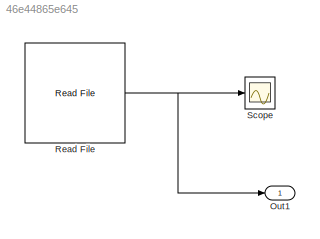
MODEL slx_46e44865e645
KIND model
CONFIG AbsTol = auto
CONFIG FixedStep = 1
CONFIG MaxStep = auto
CONFIG MinStep = auto
CONFIG RelTol = 1e-3
CONFIG SampleTimeConstraint = Unconstrained
CONFIG Solver = ode3
CONFIG SolverMode = Auto
CONFIG SolverName = ode3
CONFIG StartTime = 0.0
CONFIG StopTime = 24*3600
BLOCK [Outport] Out1
  IconDisplay = Port number
BLOCK [Reference] Read File  REF=refrigeration/Read File  (lib defined in slx_e5051c2510bc)
  Ports = [0, 1]
  SourceBlock = refrigeration/Read File
  SourceType = Read Input File
  filename = 'input.txt'
  timestep = 3600
BLOCK [Scope] Scope
  Floating = off
  NumInputPorts = 1
  Ports = [1]
NET Read File:1 -> Out1:1, Scope:1
note: NET lines group one-source signal fan-out (src -> all destinations, sorted); 1:1 wires keep LINE
